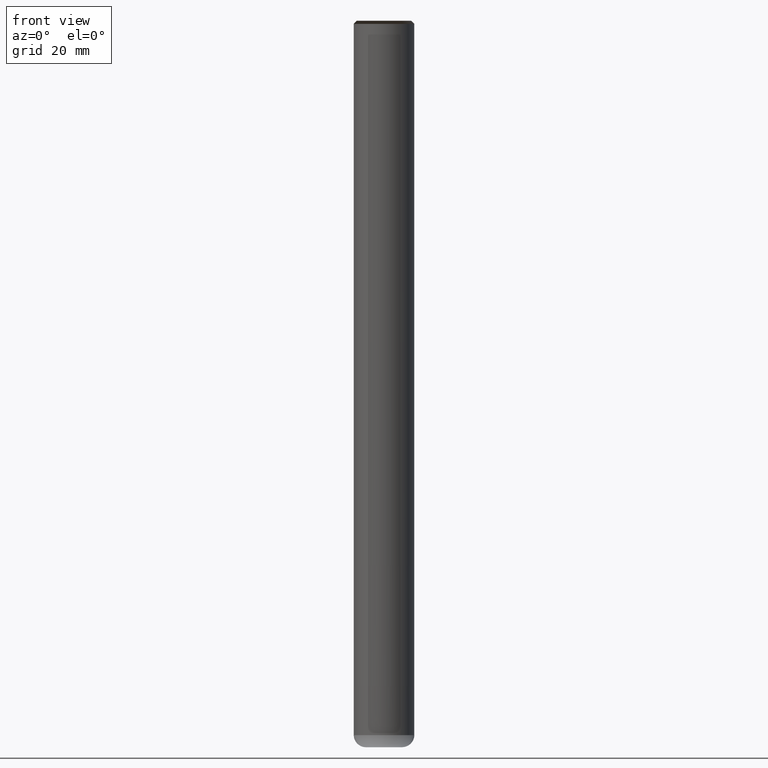
[diagram: clean part render]
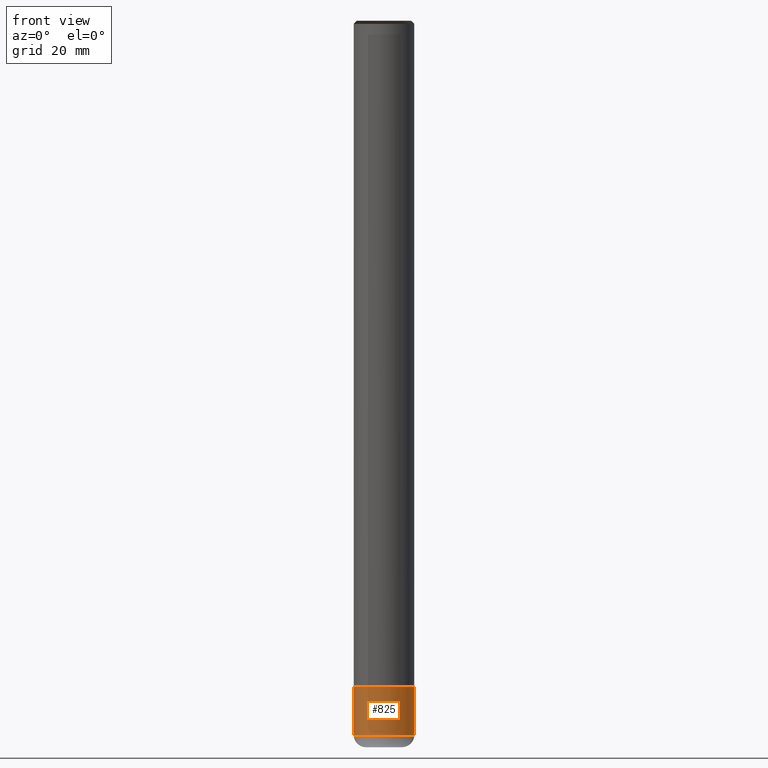
[diagram: same view with one face highlighted and labeled with its STEP entity id]
A machine part, front view. The second image highlights one B-rep face of the part: STEP entity #825.
In plain terms, the highlighted face is a freeform B-spline surface patch.
Its self-contained STEP definition (entity closure, byte-faithful):
#643=CARTESIAN_POINT('',(5.0,0.0,-28.0));
#647=CARTESIAN_POINT('',(-5.0,0.0,-28.0));
#648=CARTESIAN_POINT('',(5.0,0.0,-20.0));
#652=CARTESIAN_POINT('',(-5.0,0.0,-20.0));
#660=CARTESIAN_POINT('',(-5.0,-5.0,-28.0));
#661=CARTESIAN_POINT('',(0.0,-5.0,-28.0));
#662=CARTESIAN_POINT('',(5.0,-5.0,-28.0));
#663=CARTESIAN_POINT('',(-5.0,-5.0,-20.0));
#664=CARTESIAN_POINT('',(0.0,-5.0,-20.0));
#665=CARTESIAN_POINT('',(5.0,-5.0,-20.0));
#806=(
BOUNDED_SURFACE()
B_SPLINE_SURFACE(1,2,(
(#647,#660,#661,#662,#643),
(#652,#663,#664,#665,#648)
), .UNSPECIFIED.,.F.,.F.,.F.)
B_SPLINE_SURFACE_WITH_KNOTS((2,2),(3,2,3),(
0.0,1.0),(
0.0,0.5,1.0), .UNSPECIFIED.)
GEOMETRIC_REPRESENTATION_ITEM()
RATIONAL_B_SPLINE_SURFACE(((1.0,0.707106781187,1.0,0.707106781187,1.0),
(1.0,0.707106781187,1.0,0.707106781187,1.0)
))
REPRESENTATION_ITEM('')
SURFACE()
);
#807=(
BOUNDED_CURVE()
B_SPLINE_CURVE(1,(#652,#647),.UNSPECIFIED.,.F.,.F.)
B_SPLINE_CURVE_WITH_KNOTS((2,2),
(0.0,1.0),.UNSPECIFIED.)
CURVE()
GEOMETRIC_REPRESENTATION_ITEM()
RATIONAL_B_SPLINE_CURVE((1.0,1.0))
REPRESENTATION_ITEM('')
);
#808=(
BOUNDED_CURVE()
B_SPLINE_CURVE(2,(#647,#660,#661,#662,#643),.UNSPECIFIED.,.F.,.F.)
B_SPLINE_CURVE_WITH_KNOTS((3,2,3),
(0.0,0.5,1.0),.UNSPECIFIED.)
CURVE()
GEOMETRIC_REPRESENTATION_ITEM()
RATIONAL_B_SPLINE_CURVE((1.0,0.707106781187,1.0,0.707106781187,1.0))
REPRESENTATION_ITEM('')
);
#809=(
BOUNDED_CURVE()
B_SPLINE_CURVE(1,(#643,#648),.UNSPECIFIED.,.F.,.F.)
B_SPLINE_CURVE_WITH_KNOTS((2,2),
(0.0,1.0),.UNSPECIFIED.)
CURVE()
GEOMETRIC_REPRESENTATION_ITEM()
RATIONAL_B_SPLINE_CURVE((1.0,1.0))
REPRESENTATION_ITEM('')
);
#810=(
BOUNDED_CURVE()
B_SPLINE_CURVE(2,(#648,#665,#664,#663,#652),.UNSPECIFIED.,.F.,.F.)
B_SPLINE_CURVE_WITH_KNOTS((3,2,3),
(0.0,0.5,1.0),.UNSPECIFIED.)
CURVE()
GEOMETRIC_REPRESENTATION_ITEM()
RATIONAL_B_SPLINE_CURVE((1.0,0.707106781187,1.0,0.707106781187,1.0))
REPRESENTATION_ITEM('')
);
#811=VERTEX_POINT('',#643);
#812=VERTEX_POINT('',#647);
#813=VERTEX_POINT('',#648);
#814=VERTEX_POINT('',#652);
#815=EDGE_CURVE('',#814,#812,#807,.T.);
#816=EDGE_CURVE('',#812,#811,#808,.T.);
#817=EDGE_CURVE('',#811,#813,#809,.T.);
#818=EDGE_CURVE('',#813,#814,#810,.T.);
#819=ORIENTED_EDGE('',*,*,#815,.T.);
#820=ORIENTED_EDGE('',*,*,#816,.T.);
#821=ORIENTED_EDGE('',*,*,#817,.T.);
#822=ORIENTED_EDGE('',*,*,#818,.T.);
#823=EDGE_LOOP('',(#819,#820,#821,#822));
#824=FACE_OUTER_BOUND('',#823,.T.);
#825=ADVANCED_FACE('',(#824),#806,.T.);